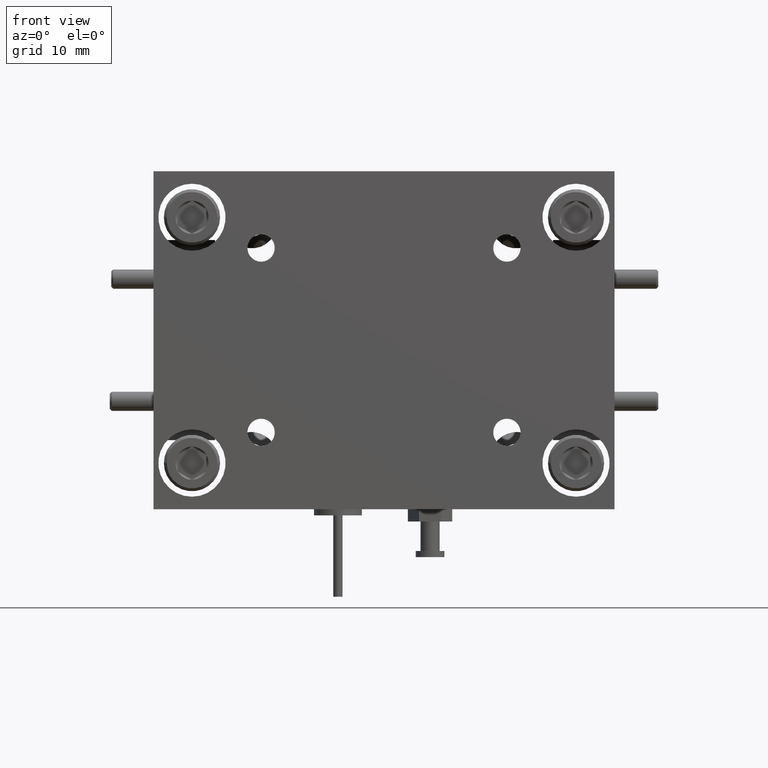
[diagram: clean part render]
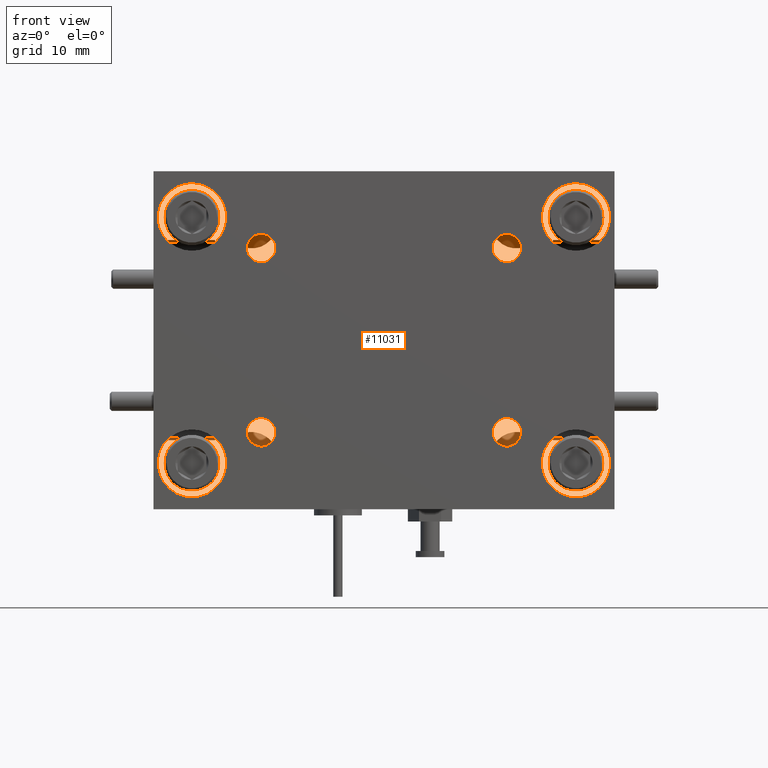
[diagram: same view with one face highlighted and labeled with its STEP entity id]
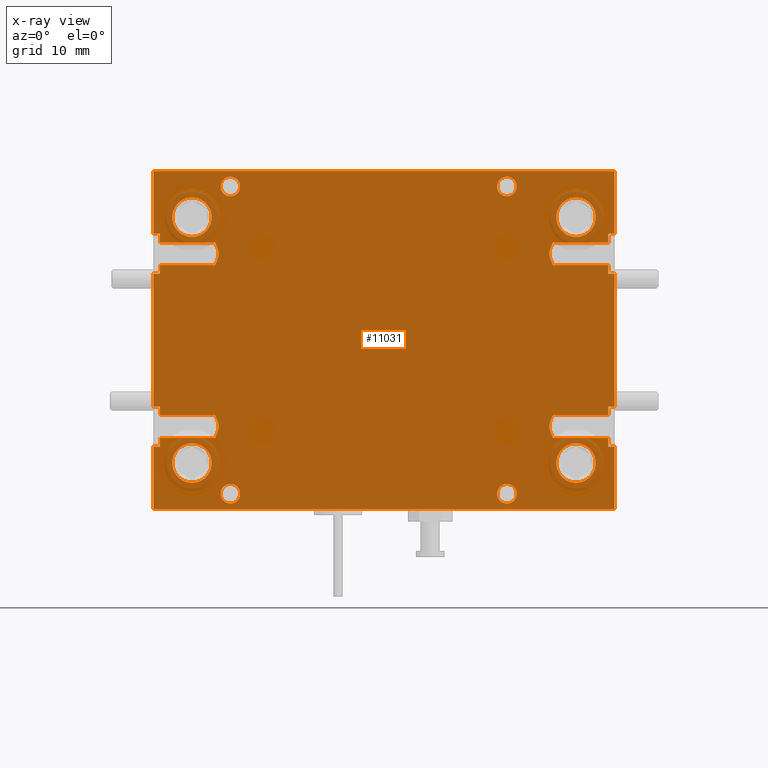
[diagram: x-ray of the same camera — body ghosted, the highlighted face saturated]
A machine part, front view. The second image highlights one B-rep face of the part: STEP entity #11031.
The next image is the same camera in x-ray: the body ghosted, the highlighted face saturated — about 96% of this face is hidden behind the body in this view.
In plain terms, the highlighted planar face has unit normal (0, 1, 0).
Its self-contained STEP definition (entity closure, byte-faithful):
#38 = FACE_BOUND ( 'NONE', #899, .T. ) ;
#44 = ORIENTED_EDGE ( 'NONE', *, *, #6949, .F. ) ;
#52 = CARTESIAN_POINT ( 'NONE',  ( -0.5927859036889990800, 0.3500000000000000300, 0.7685766500883519600 ) ) ;
#120 = CARTESIAN_POINT ( 'NONE',  ( 0.7822140963110010300, 0.3500000000000000300, -0.2456733499116477100 ) ) ;
#163 = DIRECTION ( 'NONE',  ( -0.0000000000000000000, 1.000000000000000000, -0.0000000000000000000 ) ) ;
#172 = VECTOR ( 'NONE', #6573, 39.37007874015748100 ) ;
#182 = B_SPLINE_CURVE_WITH_KNOTS ( 'NONE', 3,
 ( #1904, #8342, #7492, #6505, #8472, #9403, #2940, #2825, #9282, #3821, #3775, #9366 ),
 .UNSPECIFIED., .F., .F.,
 ( 4, 2, 2, 2, 2, 4 ),
 ( 0.001446844853020178900, 0.001939694434171056400, 0.002186119224746495100, 0.002432544015321933900, 0.002925393596472810500, 0.003418243177623687500 ),
 .UNSPECIFIED. ) ;
#192 = CARTESIAN_POINT ( 'NONE',  ( 0.8872140963110005700, 0.3500000000000000300, -0.1280568340647580400 ) ) ;
#212 = DIRECTION ( 'NONE',  ( 0.0000000000000000000, 0.0000000000000000000, -1.000000000000000000 ) ) ;
#215 = LINE ( 'NONE', #7904, #10337 ) ;
#245 = ORIENTED_EDGE ( 'NONE', *, *, #11316, .T. ) ;
#269 = DIRECTION ( 'NONE',  ( 1.000000000000000000, -0.0000000000000000000, -9.106159978880878600E-017 ) ) ;
#310 = ORIENTED_EDGE ( 'NONE', *, *, #2891, .F. ) ;
#316 = CARTESIAN_POINT ( 'NONE',  ( -0.5927859036889988600, 0.3500000000000000300, 0.5366403703567518300 ) ) ;
#338 = VERTEX_POINT ( 'NONE', #9284 ) ;
#380 = DIRECTION ( 'NONE',  ( 0.0000000000000000000, 0.0000000000000000000, 1.000000000000000000 ) ) ;
#404 = CARTESIAN_POINT ( 'NONE',  ( -0.5927859036889990800, 0.3500000000000000300, 0.7685766500883519600 ) ) ;
#426 = CARTESIAN_POINT ( 'NONE',  ( -0.3927859036889987900, 0.3500000000000000300, 0.4630129298199522300 ) ) ;
#428 = VERTEX_POINT ( 'NONE', #192 ) ;
#433 = DIRECTION ( 'NONE',  ( 0.0000000000000000000, 0.0000000000000000000, -1.000000000000000000 ) ) ;
#458 = CARTESIAN_POINT ( 'NONE',  ( 0.5572140963110009400, 0.3500000000000000900, 0.7185766500883518100 ) ) ;
#475 = CIRCLE ( 'NONE', #9201, 0.06424999999999986300 ) ;
#511 = CARTESIAN_POINT ( 'NONE',  ( 0.9072140963110009200, 0.3500000000000000300, 0.7685766500883518500 ) ) ;
#543 = VERTEX_POINT ( 'NONE', #426 ) ;
#544 = DIRECTION ( 'NONE',  ( 1.000000000000000000, -0.0000000000000000000, -0.0000000000000000000 ) ) ;
#575 = VECTOR ( 'NONE', #4503, 39.37007874015748100 ) ;
#609 = LINE ( 'NONE', #511, #5218 ) ;
#642 = CARTESIAN_POINT ( 'NONE',  ( 0.6972730390993814300, 0.3500000000000000300, 0.5126805125114612900 ) ) ;
#646 = CIRCLE ( 'NONE', #1105, 0.06424999999999986300 ) ;
#658 = AXIS2_PLACEMENT_3D ( 'NONE', #4480, #8125, #10969 ) ;
#666 = VERTEX_POINT ( 'NONE', #7103 ) ;
#673 = CARTESIAN_POINT ( 'NONE',  ( -0.3814696699383765500, 0.3500000000000001400, 0.5063457335917643800 ) ) ;
#705 = CIRCLE ( 'NONE', #1293, 0.03174999999999959800 ) ;
#727 = CARTESIAN_POINT ( 'NONE',  ( -0.3427859036889990300, 0.3500000000000000900, 0.7503266500883517500 ) ) ;
#757 = LINE ( 'NONE', #6206, #9718 ) ;
#791 = LINE ( 'NONE', #8459, #9905 ) ;
#808 = AXIS2_PLACEMENT_3D ( 'NONE', #7895, #6869, #433 ) ;
#811 = CIRCLE ( 'NONE', #5607, 0.06424999999999986300 ) ;
#833 = EDGE_CURVE ( 'NONE', #8831, #428, #791, .T. ) ;
#853 = EDGE_CURVE ( 'NONE', #11697, #2583, #646, .T. ) ;
#857 = CARTESIAN_POINT ( 'NONE',  ( -0.5727859036889987300, 0.3500000000000000300, 0.5366403703567518300 ) ) ;
#875 = CARTESIAN_POINT ( 'NONE',  ( -0.5727859036889987300, 0.3500000000000000300, 0.5652101342414621600 ) ) ;
#879 = ORIENTED_EDGE ( 'NONE', *, *, #5553, .F. ) ;
#899 = EDGE_LOOP ( 'NONE', ( #3782, #4801 ) ) ;
#913 = VERTEX_POINT ( 'NONE', #9509 ) ;
#924 = EDGE_LOOP ( 'NONE', ( #6880, #8115 ) ) ;
#940 = DIRECTION ( 'NONE',  ( 0.0000000000000000000, 0.0000000000000000000, -1.000000000000000000 ) ) ;
#946 = LINE ( 'NONE', #9551, #8008 ) ;
#959 = EDGE_LOOP ( 'NONE', ( #6372, #10409, #310, #6968, #44, #6170, #11185, #8275, #2160, #7660, #2060, #1463, #8917, #3861, #4768, #2862, #9651, #6208, #1175, #11073, #6171, #1895, #8822, #1453, #8178, #9950, #3687, #8305, #7993, #6066, #3652, #3378, #1789, #4899, #879, #7962 ) ) ;
#970 = CARTESIAN_POINT ( 'NONE',  ( -0.3871307177725713000, 0.3500000000000000300, 0.4747299638568682200 ) ) ;
#995 = VECTOR ( 'NONE', #5473, 39.37007874015748100 ) ;
#1047 = DIRECTION ( 'NONE',  ( -0.0000000000000000000, -0.0000000000000000000, 1.000000000000000000 ) ) ;
#1059 = VERTEX_POINT ( 'NONE', #6809 ) ;
#1071 = VECTOR ( 'NONE', #1047, 39.37007874015748100 ) ;
#1079 = DIRECTION ( 'NONE',  ( 0.0000000000000000000, 0.0000000000000000000, 1.000000000000000000 ) ) ;
#1105 = AXIS2_PLACEMENT_3D ( 'NONE', #3840, #4764, #5649 ) ;
#1145 = CARTESIAN_POINT ( 'NONE',  ( -0.4677859036889989200, 0.3500000000000000300, -0.1171733499116480300 ) ) ;
#1175 = ORIENTED_EDGE ( 'NONE', *, *, #6785, .F. ) ;
#1282 = VERTEX_POINT ( 'NONE', #857 ) ;
#1293 = AXIS2_PLACEMENT_3D ( 'NONE', #11252, #163, #1079 ) ;
#1297 = DIRECTION ( 'NONE',  ( 0.0000000000000000000, 0.0000000000000000000, -1.000000000000000000 ) ) ;
#1357 = LINE ( 'NONE', #6826, #4798 ) ;
#1413 = CARTESIAN_POINT ( 'NONE',  ( -0.5927859036889988600, 0.3500000000000000300, 0.002710134241462212100 ) ) ;
#1418 = CARTESIAN_POINT ( 'NONE',  ( -0.5927859036889990800, 0.3500000000000000300, -0.3314233499116480100 ) ) ;
#1441 = AXIS2_PLACEMENT_3D ( 'NONE', #458, #3122, #4974 ) ;
#1453 = ORIENTED_EDGE ( 'NONE', *, *, #11609, .T. ) ;
#1463 = ORIENTED_EDGE ( 'NONE', *, *, #5638, .T. ) ;
#1503 = LINE ( 'NONE', #10081, #6964 ) ;
#1538 = EDGE_CURVE ( 'NONE', #2083, #5386, #6380, .T. ) ;
#1582 = CARTESIAN_POINT ( 'NONE',  ( 0.6958978625603784400, 0.3500000000000000900, 0.5063457335917641600 ) ) ;
#1593 = CARTESIAN_POINT ( 'NONE',  ( 0.9072140963110009200, 0.3500000000000000300, 0.7685766500883518500 ) ) ;
#1604 = CARTESIAN_POINT ( 'NONE',  ( -0.5727859036889987300, 0.3500000000000000300, 0.4344431659352419600 ) ) ;
#1618 = CARTESIAN_POINT ( 'NONE',  ( 0.7072140963110006300, 0.3500000000000000300, 0.4630129298199522300 ) ) ;
#1623 = VERTEX_POINT ( 'NONE', #8150 ) ;
#1655 = FACE_BOUND ( 'NONE', #6479, .T. ) ;
#1664 = CARTESIAN_POINT ( 'NONE',  ( 0.7072140963110006300, 0.3500000000000000300, 0.5366403703567520500 ) ) ;
#1686 = VECTOR ( 'NONE', #2461, 39.37007874015748100 ) ;
#1738 = CARTESIAN_POINT ( 'NONE',  ( 0.1572140963110009400, 0.3500000000000000300, 0.2185766500883520600 ) ) ;
#1756 = CARTESIAN_POINT ( 'NONE',  ( 0.7822140963110010300, 0.3500000000000000300, 0.6828266500883520800 ) ) ;
#1789 = ORIENTED_EDGE ( 'NONE', *, *, #7726, .F. ) ;
#1809 = DIRECTION ( 'NONE',  ( 1.000000000000000000, 0.0000000000000000000, 0.0000000000000000000 ) ) ;
#1853 = VERTEX_POINT ( 'NONE', #4235 ) ;
#1854 = CARTESIAN_POINT ( 'NONE',  ( -0.3927859036889987900, 0.3500000000000000300, -0.02585962964324815800 ) ) ;
#1895 = ORIENTED_EDGE ( 'NONE', *, *, #3635, .F. ) ;
#1904 = CARTESIAN_POINT ( 'NONE',  ( -0.3927859036889987900, 0.3500000000000000300, -0.02585962964324815800 ) ) ;
#1940 = LINE ( 'NONE', #52, #1071 ) ;
#2003 = LINE ( 'NONE', #8217, #6429 ) ;
#2059 = CARTESIAN_POINT ( 'NONE',  ( 0.8872140963110005700, 0.3500000000000000300, 0.2185766500883520600 ) ) ;
#2060 = ORIENTED_EDGE ( 'NONE', *, *, #11406, .F. ) ;
#2083 = VERTEX_POINT ( 'NONE', #727 ) ;
#2110 = CARTESIAN_POINT ( 'NONE',  ( 0.9072140963110007000, 0.3500000000000000300, 0.002710134241462109700 ) ) ;
#2160 = ORIENTED_EDGE ( 'NONE', *, *, #11263, .T. ) ;
#2163 = EDGE_CURVE ( 'NONE', #7099, #6370, #9879, .T. ) ;
#2170 = VERTEX_POINT ( 'NONE', #8308 ) ;
#2210 = VECTOR ( 'NONE', #940, 39.37007874015748100 ) ;
#2222 = FACE_BOUND ( 'NONE', #9079, .T. ) ;
#2263 = EDGE_CURVE ( 'NONE', #7959, #7622, #10729, .T. ) ;
#2273 = VECTOR ( 'NONE', #7294, 39.37007874015748100 ) ;
#2344 = DIRECTION ( 'NONE',  ( -0.0000000000000000000, 1.000000000000000000, -0.0000000000000000000 ) ) ;
#2408 = EDGE_CURVE ( 'NONE', #2709, #3125, #11030, .T. ) ;
#2429 = EDGE_CURVE ( 'NONE', #10242, #10837, #609, .T. ) ;
#2461 = DIRECTION ( 'NONE',  ( 0.0000000000000000000, -0.0000000000000000000, 1.000000000000000000 ) ) ;
#2465 = VERTEX_POINT ( 'NONE', #1413 ) ;
#2472 = DIRECTION ( 'NONE',  ( -1.000000000000000000, -0.0000000000000000000, -0.0000000000000000000 ) ) ;
#2478 = CARTESIAN_POINT ( 'NONE',  ( -0.3927859036889987900, 0.3500000000000000300, 0.5366403703567520500 ) ) ;
#2488 = CARTESIAN_POINT ( 'NONE',  ( 0.7015589103945730800, 0.3500000000000000300, 0.4747299638568682200 ) ) ;
#2494 = VECTOR ( 'NONE', #212, 39.37007874015748100 ) ;
#2500 = FACE_BOUND ( 'NONE', #9942, .T. ) ;
#2583 = VERTEX_POINT ( 'NONE', #120 ) ;
#2662 = CARTESIAN_POINT ( 'NONE',  ( 0.8872140963110005700, 0.3500000000000000300, -0.09948707018004769600 ) ) ;
#2667 = CARTESIAN_POINT ( 'NONE',  ( 0.8872140963110005700, 0.3500000000000000300, 0.4344431659352419000 ) ) ;
#2689 = CARTESIAN_POINT ( 'NONE',  ( 0.9072140963110007000, 0.3500000000000000300, -0.1280568340647580400 ) ) ;
#2709 = VERTEX_POINT ( 'NONE', #9501 ) ;
#2748 = VERTEX_POINT ( 'NONE', #3030 ) ;
#2806 = FACE_BOUND ( 'NONE', #5462, .T. ) ;
#2825 = CARTESIAN_POINT ( 'NONE',  ( -0.3810701349866283900, 0.3500000000000000300, -0.06918381239685779400 ) ) ;
#2826 = AXIS2_PLACEMENT_3D ( 'NONE', #4284, #5207, #7053 ) ;
#2834 = DIRECTION ( 'NONE',  ( 1.000000000000000000, -0.0000000000000000000, -0.0000000000000000000 ) ) ;
#2862 = ORIENTED_EDGE ( 'NONE', *, *, #4432, .T. ) ;
#2891 = EDGE_CURVE ( 'NONE', #543, #2748, #9814, .T. ) ;
#2920 = VERTEX_POINT ( 'NONE', #2662 ) ;
#2922 = EDGE_CURVE ( 'NONE', #8831, #9827, #3429, .T. ) ;
#2935 = CARTESIAN_POINT ( 'NONE',  ( 0.5572140963110009400, 0.3500000000000000900, 0.6868266500883522000 ) ) ;
#2940 = CARTESIAN_POINT ( 'NONE',  ( -0.3810686156904092300, 0.3500000000000000900, -0.05942783784264794900 ) ) ;
#3001 = CARTESIAN_POINT ( 'NONE',  ( -0.4677859036889989200, 0.3500000000000000300, 0.6185766500883520500 ) ) ;
#3002 = CARTESIAN_POINT ( 'NONE',  ( 0.7822140963110010300, 0.3500000000000000300, -0.1171733499116479800 ) ) ;
#3006 = CARTESIAN_POINT ( 'NONE',  ( 0.8872140963110005700, 0.3500000000000000900, 0.5366403703567518300 ) ) ;
#3030 = CARTESIAN_POINT ( 'NONE',  ( -0.5727859036889987300, 0.3500000000000000900, 0.4630129298199525100 ) ) ;
#3046 = CARTESIAN_POINT ( 'NONE',  ( 0.7072140963110006300, 0.3500000000000000300, -0.02585962964324815800 ) ) ;
#3120 = CIRCLE ( 'NONE', #1441, 0.03174999999999959800 ) ;
#3122 = DIRECTION ( 'NONE',  ( -0.0000000000000000000, 1.000000000000000000, -0.0000000000000000000 ) ) ;
#3125 = VERTEX_POINT ( 'NONE', #1145 ) ;
#3153 = VERTEX_POINT ( 'NONE', #7664 ) ;
#3185 = VECTOR ( 'NONE', #2834, 39.37007874015748100 ) ;
#3204 = VERTEX_POINT ( 'NONE', #2110 ) ;
#3258 = VERTEX_POINT ( 'NONE', #1418 ) ;
#3262 = DIRECTION ( 'NONE',  ( -1.000000000000000000, 0.0000000000000000000, 0.0000000000000000000 ) ) ;
#3295 = DIRECTION ( 'NONE',  ( 0.0000000000000000000, 0.0000000000000000000, 1.000000000000000000 ) ) ;
#3307 = VECTOR ( 'NONE', #5747, 39.37007874015748100 ) ;
#3365 = CARTESIAN_POINT ( 'NONE',  ( 0.8872140963110005700, 0.3500000000000000300, 0.002710134241462109700 ) ) ;
#3378 = ORIENTED_EDGE ( 'NONE', *, *, #11093, .F. ) ;
#3427 = EDGE_CURVE ( 'NONE', #2465, #7506, #2003, .T. ) ;
#3429 = LINE ( 'NONE', #1593, #995 ) ;
#3478 = LINE ( 'NONE', #875, #11306 ) ;
#3487 = DIRECTION ( 'NONE',  ( 0.0000000000000000000, -0.0000000000000000000, 1.000000000000000000 ) ) ;
#3593 = VERTEX_POINT ( 'NONE', #3847 ) ;
#3605 = VERTEX_POINT ( 'NONE', #3006 ) ;
#3623 = AXIS2_PLACEMENT_3D ( 'NONE', #3977, #10450, #8711 ) ;
#3635 = EDGE_CURVE ( 'NONE', #11529, #8129, #9689, .T. ) ;
#3652 = ORIENTED_EDGE ( 'NONE', *, *, #11401, .F. ) ;
#3687 = ORIENTED_EDGE ( 'NONE', *, *, #10511, .T. ) ;
#3727 = EDGE_CURVE ( 'NONE', #8088, #3593, #3120, .T. ) ;
#3763 = CARTESIAN_POINT ( 'NONE',  ( 0.5572140963110009400, 0.3500000000000000900, -0.2496733499116484700 ) ) ;
#3774 = CARTESIAN_POINT ( 'NONE',  ( 0.9072140963110007000, 0.3500000000000000300, 0.4630129298199525100 ) ) ;
#3775 = CARTESIAN_POINT ( 'NONE',  ( -0.3898894532456844700, 0.3500000000000000300, -0.09366010175864932000 ) ) ;
#3782 = ORIENTED_EDGE ( 'NONE', *, *, #9697, .F. ) ;
#3821 = CARTESIAN_POINT ( 'NONE',  ( -0.3871307177725711300, 0.3500000000000000300, -0.08777003614313191900 ) ) ;
#3840 = CARTESIAN_POINT ( 'NONE',  ( 0.7822140963110010300, 0.3500000000000000300, -0.1814233499116478200 ) ) ;
#3847 = CARTESIAN_POINT ( 'NONE',  ( 0.5572140963110009400, 0.3500000000000000900, 0.7503266500883514200 ) ) ;
#3861 = ORIENTED_EDGE ( 'NONE', *, *, #5782, .F. ) ;
#3916 = DIRECTION ( 'NONE',  ( -0.0000000000000000000, -1.000000000000000000, -0.0000000000000000000 ) ) ;
#3922 = CARTESIAN_POINT ( 'NONE',  ( 0.6954968083124114500, 0.3500000000000000900, -0.05942783784264801100 ) ) ;
#3928 = VECTOR ( 'NONE', #544, 39.37007874015748100 ) ;
#3977 = CARTESIAN_POINT ( 'NONE',  ( -0.3427859036889990300, 0.3500000000000000900, -0.2814233499116479100 ) ) ;
#4074 = EDGE_CURVE ( 'NONE', #3125, #2709, #10637, .T. ) ;
#4087 = FACE_OUTER_BOUND ( 'NONE', #959, .T. ) ;
#4113 = EDGE_CURVE ( 'NONE', #9587, #5588, #8311, .T. ) ;
#4114 = CARTESIAN_POINT ( 'NONE',  ( 0.7822140963110010300, 0.3500000000000000300, 0.6185766500883522800 ) ) ;
#4131 = LINE ( 'NONE', #7254, #2273 ) ;
#4235 = CARTESIAN_POINT ( 'NONE',  ( 0.9072140963110007000, 0.3500000000000000300, 0.4344431659352419000 ) ) ;
#4255 = VECTOR ( 'NONE', #5560, 39.37007874015748100 ) ;
#4284 = CARTESIAN_POINT ( 'NONE',  ( -0.3427859036889990300, 0.3500000000000000900, 0.7185766500883521400 ) ) ;
#4298 = CARTESIAN_POINT ( 'NONE',  ( -0.3838104479673371500, 0.3499999999999998700, 0.5157916129728310500 ) ) ;
#4317 = DIRECTION ( 'NONE',  ( -1.000000000000000000, -0.0000000000000000000, -0.0000000000000000000 ) ) ;
#4319 = LINE ( 'NONE', #3774, #11566 ) ;
#4369 = LINE ( 'NONE', #6063, #3928 ) ;
#4396 = CARTESIAN_POINT ( 'NONE',  ( -0.5927859036889988600, 0.3500000000000000300, 0.4630129298199525100 ) ) ;
#4401 = CARTESIAN_POINT ( 'NONE',  ( -0.3427859036889990300, 0.3500000000000000900, -0.3131733499116475300 ) ) ;
#4429 = DIRECTION ( 'NONE',  ( -1.000000000000000000, 0.0000000000000000000, 0.0000000000000000000 ) ) ;
#4432 = EDGE_CURVE ( 'NONE', #5973, #10745, #4969, .T. ) ;
#4469 = EDGE_LOOP ( 'NONE', ( #5580, #7045 ) ) ;
#4480 = CARTESIAN_POINT ( 'NONE',  ( -0.3427859036889990300, 0.3500000000000000900, -0.2814233499116479100 ) ) ;
#4503 = DIRECTION ( 'NONE',  ( 1.000000000000000000, 0.0000000000000000000, 0.0000000000000000000 ) ) ;
#4601 = EDGE_CURVE ( 'NONE', #1853, #3204, #215, .T. ) ;
#4617 = DIRECTION ( 'NONE',  ( -1.000000000000000000, 0.0000000000000000000, 0.0000000000000000000 ) ) ;
#4662 = EDGE_CURVE ( 'NONE', #666, #6227, #10772, .T. ) ;
#4711 = CARTESIAN_POINT ( 'NONE',  ( 0.8872140963110005700, 0.3500000000000000300, 0.002710134241462109700 ) ) ;
#4758 = EDGE_LOOP ( 'NONE', ( #11809, #245 ) ) ;
#4764 = DIRECTION ( 'NONE',  ( -0.0000000000000000000, -1.000000000000000000, -0.0000000000000000000 ) ) ;
#4768 = ORIENTED_EDGE ( 'NONE', *, *, #8009, .F. ) ;
#4769 = CARTESIAN_POINT ( 'NONE',  ( -0.5727859036889987300, 0.3500000000000000300, -0.1280568340647581000 ) ) ;
#4798 = VECTOR ( 'NONE', #10644, 39.37007874015748100 ) ;
#4801 = ORIENTED_EDGE ( 'NONE', *, *, #3727, .F. ) ;
#4899 = ORIENTED_EDGE ( 'NONE', *, *, #5497, .T. ) ;
#4945 = CARTESIAN_POINT ( 'NONE',  ( -0.4677859036889989200, 0.3500000000000000300, 0.6185766500883520500 ) ) ;
#4946 = LINE ( 'NONE', #7387, #7100 ) ;
#4969 = LINE ( 'NONE', #11088, #4255 ) ;
#4974 = DIRECTION ( 'NONE',  ( 0.0000000000000000000, 0.0000000000000000000, 1.000000000000000000 ) ) ;
#5033 = CARTESIAN_POINT ( 'NONE',  ( 0.5572140963110009400, 0.3500000000000000900, 0.7185766500883518100 ) ) ;
#5066 = AXIS2_PLACEMENT_3D ( 'NONE', #6993, #9219, #11844 ) ;
#5068 = DIRECTION ( 'NONE',  ( 0.0000000000000000000, 0.0000000000000000000, -1.000000000000000000 ) ) ;
#5077 = DIRECTION ( 'NONE',  ( -0.0000000000000000000, -1.000000000000000000, -0.0000000000000000000 ) ) ;
#5167 = DIRECTION ( 'NONE',  ( 0.0000000000000000000, -0.0000000000000000000, 1.000000000000000000 ) ) ;
#5207 = DIRECTION ( 'NONE',  ( -0.0000000000000000000, 1.000000000000000000, -0.0000000000000000000 ) ) ;
#5217 = CARTESIAN_POINT ( 'NONE',  ( -0.3828448464773794300, 0.3500000000000000900, 0.5126805125114614100 ) ) ;
#5218 = VECTOR ( 'NONE', #11621, 39.37007874015748100 ) ;
#5227 = CIRCLE ( 'NONE', #6695, 0.06424999999999986300 ) ;
#5238 = EDGE_CURVE ( 'NONE', #1282, #338, #5820, .T. ) ;
#5307 = DIRECTION ( 'NONE',  ( 0.0000000000000000000, 1.000000000000000000, 0.0000000000000000000 ) ) ;
#5326 = ORIENTED_EDGE ( 'NONE', *, *, #2263, .T. ) ;
#5335 = CARTESIAN_POINT ( 'NONE',  ( 0.7043346397212324500, 0.3500000000000000300, 0.5308475895211588500 ) ) ;
#5336 = LINE ( 'NONE', #316, #5630 ) ;
#5342 = LINE ( 'NONE', #4711, #3185 ) ;
#5371 = LINE ( 'NONE', #9605, #11469 ) ;
#5386 = VERTEX_POINT ( 'NONE', #6152 ) ;
#5462 = EDGE_LOOP ( 'NONE', ( #7834, #7876 ) ) ;
#5464 = VERTEX_POINT ( 'NONE', #1854 ) ;
#5473 = DIRECTION ( 'NONE',  ( 0.0000000000000000000, 0.0000000000000000000, -1.000000000000000000 ) ) ;
#5487 = DIRECTION ( 'NONE',  ( 1.000000000000000000, 0.0000000000000000000, 0.0000000000000000000 ) ) ;
#5491 = CIRCLE ( 'NONE', #3623, 0.03174999999999959800 ) ;
#5497 = EDGE_CURVE ( 'NONE', #2170, #9109, #1503, .T. ) ;
#5553 = EDGE_CURVE ( 'NONE', #2465, #9109, #4946, .T. ) ;
#5560 = DIRECTION ( 'NONE',  ( 0.0000000000000000000, 0.0000000000000000000, -1.000000000000000000 ) ) ;
#5562 = CIRCLE ( 'NONE', #11663, 0.03174999999999959800 ) ;
#5580 = ORIENTED_EDGE ( 'NONE', *, *, #2408, .T. ) ;
#5588 = VERTEX_POINT ( 'NONE', #3763 ) ;
#5607 = AXIS2_PLACEMENT_3D ( 'NONE', #4114, #5077, #11713 ) ;
#5622 = VERTEX_POINT ( 'NONE', #9426 ) ;
#5630 = VECTOR ( 'NONE', #6751, 39.37007874015748100 ) ;
#5638 = EDGE_CURVE ( 'NONE', #913, #3605, #10455, .T. ) ;
#5649 = DIRECTION ( 'NONE',  ( 0.0000000000000000000, 0.0000000000000000000, -1.000000000000000000 ) ) ;
#5700 = CARTESIAN_POINT ( 'NONE',  ( 0.7072140963110006300, 0.3500000000000000300, -0.09948707018004789000 ) ) ;
#5727 = CARTESIAN_POINT ( 'NONE',  ( 0.8872140963110005700, 0.3500000000000000300, 0.2185766500883520600 ) ) ;
#5747 = DIRECTION ( 'NONE',  ( -1.000000000000000000, -0.0000000000000000000, -0.0000000000000000000 ) ) ;
#5770 = CIRCLE ( 'NONE', #2826, 0.03174999999999959800 ) ;
#5778 = CARTESIAN_POINT ( 'NONE',  ( 0.6972730390993813200, 0.3500000000000000300, -0.04981948748853885800 ) ) ;
#5782 = EDGE_CURVE ( 'NONE', #6921, #6709, #10618, .T. ) ;
#5820 = LINE ( 'NONE', #6946, #9897 ) ;
#5882 = CARTESIAN_POINT ( 'NONE',  ( -0.3927859036889987900, 0.3500000000000000300, -0.09948707018004789000 ) ) ;
#5896 = CARTESIAN_POINT ( 'NONE',  ( 0.7822140963110010300, 0.3500000000000000300, 0.6185766500883522800 ) ) ;
#5916 = CARTESIAN_POINT ( 'NONE',  ( -0.3427859036889990300, 0.3500000000000000900, 0.7185766500883521400 ) ) ;
#5973 = VERTEX_POINT ( 'NONE', #10097 ) ;
#6040 = CIRCLE ( 'NONE', #658, 0.03174999999999959800 ) ;
#6063 = CARTESIAN_POINT ( 'NONE',  ( 0.8872140963110005700, 0.3500000000000000300, 0.5652101342414622700 ) ) ;
#6066 = ORIENTED_EDGE ( 'NONE', *, *, #7637, .T. ) ;
#6118 = CARTESIAN_POINT ( 'NONE',  ( 0.9072140963110009200, 0.3500000000000000300, 0.7685766500883518500 ) ) ;
#6124 = CARTESIAN_POINT ( 'NONE',  ( 0.6954983276086304000, 0.3500000000000001400, 0.4933161876031424400 ) ) ;
#6130 = EDGE_CURVE ( 'NONE', #1623, #8648, #5491, .T. ) ;
#6152 = CARTESIAN_POINT ( 'NONE',  ( -0.3427859036889990300, 0.3500000000000000900, 0.6868266500883525300 ) ) ;
#6170 = ORIENTED_EDGE ( 'NONE', *, *, #5238, .T. ) ;
#6171 = ORIENTED_EDGE ( 'NONE', *, *, #9458, .F. ) ;
#6206 = CARTESIAN_POINT ( 'NONE',  ( 0.8872140963110005700, 0.3500000000000000300, 0.4344431659352419000 ) ) ;
#6208 = ORIENTED_EDGE ( 'NONE', *, *, #4601, .T. ) ;
#6227 = VERTEX_POINT ( 'NONE', #7066 ) ;
#6229 = DIRECTION ( 'NONE',  ( 1.000000000000000000, -0.0000000000000000000, -0.0000000000000000000 ) ) ;
#6333 = EDGE_CURVE ( 'NONE', #666, #338, #3478, .T. ) ;
#6370 = VERTEX_POINT ( 'NONE', #10976 ) ;
#6372 = ORIENTED_EDGE ( 'NONE', *, *, #9256, .F. ) ;
#6380 = CIRCLE ( 'NONE', #10388, 0.03174999999999959800 ) ;
#6397 = EDGE_CURVE ( 'NONE', #7622, #7959, #10161, .T. ) ;
#6429 = VECTOR ( 'NONE', #10247, 39.37007874015748100 ) ;
#6436 = LINE ( 'NONE', #1604, #8191 ) ;
#6462 = CARTESIAN_POINT ( 'NONE',  ( -0.3927859036889987900, 0.3500000000000000300, 0.4630129298199522300 ) ) ;
#6479 = EDGE_LOOP ( 'NONE', ( #9765, #5326 ) ) ;
#6505 = CARTESIAN_POINT ( 'NONE',  ( -0.3838104479673371000, 0.3499999999999999800, -0.04670838702716891000 ) ) ;
#6573 = DIRECTION ( 'NONE',  ( 0.0000000000000000000, 0.0000000000000000000, -1.000000000000000000 ) ) ;
#6623 = VERTEX_POINT ( 'NONE', #8889 ) ;
#6632 = LINE ( 'NONE', #9039, #10561 ) ;
#6638 = EDGE_CURVE ( 'NONE', #1853, #10745, #757, .T. ) ;
#6643 = ORIENTED_EDGE ( 'NONE', *, *, #4113, .F. ) ;
#6695 = AXIS2_PLACEMENT_3D ( 'NONE', #9592, #9477, #11378 ) ;
#6697 = CARTESIAN_POINT ( 'NONE',  ( 0.6982386405893390400, 0.3500000000000000300, -0.04670838702716899300 ) ) ;
#6709 = VERTEX_POINT ( 'NONE', #7367 ) ;
#6751 = DIRECTION ( 'NONE',  ( 1.000000000000000000, 0.0000000000000000000, 0.0000000000000000000 ) ) ;
#6770 = AXIS2_PLACEMENT_3D ( 'NONE', #1738, #5307, #3487 ) ;
#6773 = DIRECTION ( 'NONE',  ( -0.0000000000000000000, 1.000000000000000000, -0.0000000000000000000 ) ) ;
#6785 = EDGE_CURVE ( 'NONE', #7099, #3204, #5342, .T. ) ;
#6809 = CARTESIAN_POINT ( 'NONE',  ( -0.5727859036889987300, 0.3500000000000000300, 0.4344431659352419600 ) ) ;
#6817 = CARTESIAN_POINT ( 'NONE',  ( -0.5927859036889988600, 0.3500000000000000300, 0.4344431659352419600 ) ) ;
#6826 = CARTESIAN_POINT ( 'NONE',  ( -0.5927859036889988600, 0.3500000000000000300, -0.09948707018004769600 ) ) ;
#6851 = LINE ( 'NONE', #10748, #6995 ) ;
#6869 = DIRECTION ( 'NONE',  ( -0.0000000000000000000, -1.000000000000000000, -0.0000000000000000000 ) ) ;
#6880 = ORIENTED_EDGE ( 'NONE', *, *, #1538, .F. ) ;
#6921 = VERTEX_POINT ( 'NONE', #8563 ) ;
#6946 = CARTESIAN_POINT ( 'NONE',  ( -0.5727859036889987300, 0.3500000000000000300, 0.2185766500883520600 ) ) ;
#6949 = EDGE_CURVE ( 'NONE', #1282, #5622, #5336, .T. ) ;
#6964 = VECTOR ( 'NONE', #9267, 39.37007874015748100 ) ;
#6968 = ORIENTED_EDGE ( 'NONE', *, *, #7967, .F. ) ;
#6978 = CARTESIAN_POINT ( 'NONE',  ( -0.5727859036889987300, 0.3500000000000000300, 0.002710134241462212100 ) ) ;
#6993 = CARTESIAN_POINT ( 'NONE',  ( -0.4677859036889989200, 0.3500000000000000300, -0.1814233499116479600 ) ) ;
#6995 = VECTOR ( 'NONE', #3262, 39.37007874015748100 ) ;
#7023 = CARTESIAN_POINT ( 'NONE',  ( -0.5927859036889988600, 0.3500000000000000300, -0.1280568340647581000 ) ) ;
#7045 = ORIENTED_EDGE ( 'NONE', *, *, #4074, .T. ) ;
#7053 = DIRECTION ( 'NONE',  ( 0.0000000000000000000, 0.0000000000000000000, 1.000000000000000000 ) ) ;
#7064 = LINE ( 'NONE', #10713, #9690 ) ;
#7066 = CARTESIAN_POINT ( 'NONE',  ( -0.5927859036889990800, 0.3500000000000000300, 0.7685766500883519600 ) ) ;
#7071 = CARTESIAN_POINT ( 'NONE',  ( 0.6954968083124113400, 0.3500000000000000900, 0.5030721621573522900 ) ) ;
#7099 = VERTEX_POINT ( 'NONE', #3365 ) ;
#7100 = VECTOR ( 'NONE', #5487, 39.37007874015748100 ) ;
#7103 = CARTESIAN_POINT ( 'NONE',  ( -0.5927859036889988600, 0.3500000000000000300, 0.5652101342414621600 ) ) ;
#7109 = FACE_BOUND ( 'NONE', #4758, .T. ) ;
#7118 = CARTESIAN_POINT ( 'NONE',  ( 0.7043176458676865300, 0.3500000000000000900, 0.4688398982413508100 ) ) ;
#7124 = EDGE_CURVE ( 'NONE', #6709, #3605, #6632, .T. ) ;
#7191 = PLANE ( 'NONE',  #6770 ) ;
#7254 = CARTESIAN_POINT ( 'NONE',  ( 0.9072140963110007000, 0.3500000000000000300, -0.02585962964324839800 ) ) ;
#7282 = CARTESIAN_POINT ( 'NONE',  ( 0.8872140963110005700, 0.3500000000000000300, 0.2185766500883520600 ) ) ;
#7294 = DIRECTION ( 'NONE',  ( 1.000000000000000000, -0.0000000000000000000, -0.0000000000000000000 ) ) ;
#7307 = CARTESIAN_POINT ( 'NONE',  ( 0.7072140963110006300, 0.3500000000000000300, -0.09948707018004789000 ) ) ;
#7367 = CARTESIAN_POINT ( 'NONE',  ( 0.7072140963110006300, 0.3500000000000000300, 0.5366403703567520500 ) ) ;
#7387 = CARTESIAN_POINT ( 'NONE',  ( -0.5727859036889987300, 0.3500000000000000300, 0.002710134241462212100 ) ) ;
#7401 = CARTESIAN_POINT ( 'NONE',  ( -0.3826907547146888900, 0.3500000000000000900, 0.4869468634376549200 ) ) ;
#7486 = CARTESIAN_POINT ( 'NONE',  ( 0.6954983276086301700, 0.3500000000000000900, -0.06918381239685780800 ) ) ;
#7492 = CARTESIAN_POINT ( 'NONE',  ( -0.3871570212146349700, 0.3500000000000000300, -0.03751288398535412800 ) ) ;
#7506 = VERTEX_POINT ( 'NONE', #6817 ) ;
#7622 = VERTEX_POINT ( 'NONE', #8863 ) ;
#7637 = EDGE_CURVE ( 'NONE', #10505, #6623, #7064, .T. ) ;
#7649 = CARTESIAN_POINT ( 'NONE',  ( 0.7015852138366370800, 0.3500000000000001400, -0.03751288398535423300 ) ) ;
#7658 = EDGE_CURVE ( 'NONE', #5386, #2083, #5770, .T. ) ;
#7660 = ORIENTED_EDGE ( 'NONE', *, *, #2429, .T. ) ;
#7664 = CARTESIAN_POINT ( 'NONE',  ( 0.7822140963110010300, 0.3500000000000000300, 0.5543266500883523600 ) ) ;
#7726 = EDGE_CURVE ( 'NONE', #2170, #5464, #10417, .T. ) ;
#7759 = EDGE_CURVE ( 'NONE', #10505, #11530, #11417, .T. ) ;
#7807 = DIRECTION ( 'NONE',  ( 0.0000000000000000000, 0.0000000000000000000, -1.000000000000000000 ) ) ;
#7834 = ORIENTED_EDGE ( 'NONE', *, *, #11679, .T. ) ;
#7876 = ORIENTED_EDGE ( 'NONE', *, *, #853, .T. ) ;
#7895 = CARTESIAN_POINT ( 'NONE',  ( -0.4677859036889989200, 0.3500000000000000300, -0.1814233499116479600 ) ) ;
#7904 = CARTESIAN_POINT ( 'NONE',  ( 0.9072140963110009200, 0.3500000000000000300, 0.7685766500883518500 ) ) ;
#7948 = CARTESIAN_POINT ( 'NONE',  ( -0.5727859036889987300, 0.3500000000000000300, 0.2185766500883520600 ) ) ;
#7959 = VERTEX_POINT ( 'NONE', #11702 ) ;
#7962 = ORIENTED_EDGE ( 'NONE', *, *, #3427, .T. ) ;
#7967 = EDGE_CURVE ( 'NONE', #5622, #543, #10781, .T. ) ;
#7993 = ORIENTED_EDGE ( 'NONE', *, *, #7759, .F. ) ;
#8008 = VECTOR ( 'NONE', #8585, 39.37007874015748100 ) ;
#8009 = EDGE_CURVE ( 'NONE', #5973, #6921, #4319, .T. ) ;
#8065 = CARTESIAN_POINT ( 'NONE',  ( 0.6971189473366906600, 0.3499999999999999800, 0.4869468634376547500 ) ) ;
#8088 = VERTEX_POINT ( 'NONE', #2935 ) ;
#8115 = ORIENTED_EDGE ( 'NONE', *, *, #7658, .F. ) ;
#8125 = DIRECTION ( 'NONE',  ( -0.0000000000000000000, 1.000000000000000000, -0.0000000000000000000 ) ) ;
#8129 = VERTEX_POINT ( 'NONE', #10443 ) ;
#8150 = CARTESIAN_POINT ( 'NONE',  ( -0.3427859036889990300, 0.3500000000000000900, -0.2496733499116483300 ) ) ;
#8178 = ORIENTED_EDGE ( 'NONE', *, *, #833, .F. ) ;
#8191 = VECTOR ( 'NONE', #2472, 39.37007874015748100 ) ;
#8217 = CARTESIAN_POINT ( 'NONE',  ( -0.5927859036889990800, 0.3500000000000000300, 0.7685766500883519600 ) ) ;
#8257 = CARTESIAN_POINT ( 'NONE',  ( -0.3898894532456845300, 0.3500000000000001400, 0.4688398982413509200 ) ) ;
#8275 = ORIENTED_EDGE ( 'NONE', *, *, #4662, .T. ) ;
#8305 = ORIENTED_EDGE ( 'NONE', *, *, #8891, .T. ) ;
#8308 = CARTESIAN_POINT ( 'NONE',  ( -0.5727859036889987300, 0.3500000000000000300, -0.02585962964324839800 ) ) ;
#8311 = CIRCLE ( 'NONE', #8405, 0.03174999999999959800 ) ;
#8342 = CARTESIAN_POINT ( 'NONE',  ( -0.3899064470992305000, 0.3500000000000000300, -0.03165241047884118800 ) ) ;
#8365 = EDGE_CURVE ( 'NONE', #8648, #1623, #6040, .T. ) ;
#8405 = AXIS2_PLACEMENT_3D ( 'NONE', #11377, #6773, #380 ) ;
#8427 = CARTESIAN_POINT ( 'NONE',  ( 0.6971189473366905500, 0.3499999999999998700, -0.07555313656234531600 ) ) ;
#8459 = CARTESIAN_POINT ( 'NONE',  ( 0.8872140963110005700, 0.3500000000000000300, -0.1280568340647580400 ) ) ;
#8472 = CARTESIAN_POINT ( 'NONE',  ( -0.3828448464773794300, 0.3500000000000001400, -0.04981948748853882300 ) ) ;
#8530 = CARTESIAN_POINT ( 'NONE',  ( 0.9072140963110007000, 0.3500000000000000300, 0.5652101342414622700 ) ) ;
#8533 = EDGE_CURVE ( 'NONE', #5588, #9587, #705, .T. ) ;
#8563 = CARTESIAN_POINT ( 'NONE',  ( 0.7072140963110006300, 0.3500000000000000300, 0.4630129298199522300 ) ) ;
#8585 = DIRECTION ( 'NONE',  ( -1.000000000000000000, 0.0000000000000000000, 1.821231995776175700E-016 ) ) ;
#8590 = CARTESIAN_POINT ( 'NONE',  ( 0.7043346397212325600, 0.3500000000000000900, -0.03165241047884126400 ) ) ;
#8615 = CARTESIAN_POINT ( 'NONE',  ( 0.5572140963110009400, 0.3500000000000000900, -0.3131733499116476900 ) ) ;
#8648 = VERTEX_POINT ( 'NONE', #4401 ) ;
#8711 = DIRECTION ( 'NONE',  ( 0.0000000000000000000, 0.0000000000000000000, 1.000000000000000000 ) ) ;
#8755 = VERTEX_POINT ( 'NONE', #1756 ) ;
#8791 = DIRECTION ( 'NONE',  ( 0.0000000000000000000, -0.0000000000000000000, 1.000000000000000000 ) ) ;
#8806 = DIRECTION ( 'NONE',  ( 0.0000000000000000000, 0.0000000000000000000, 1.000000000000000000 ) ) ;
#8822 = ORIENTED_EDGE ( 'NONE', *, *, #9739, .F. ) ;
#8831 = VERTEX_POINT ( 'NONE', #2689 ) ;
#8846 = DIRECTION ( 'NONE',  ( -0.0000000000000000000, 1.000000000000000000, -0.0000000000000000000 ) ) ;
#8863 = CARTESIAN_POINT ( 'NONE',  ( -0.4677859036889989200, 0.3500000000000000300, 0.5543266500883521400 ) ) ;
#8889 = CARTESIAN_POINT ( 'NONE',  ( -0.5727859036889987300, 0.3500000000000000900, -0.09948707018004769600 ) ) ;
#8891 = EDGE_CURVE ( 'NONE', #3258, #11530, #1940, .T. ) ;
#8917 = ORIENTED_EDGE ( 'NONE', *, *, #7124, .F. ) ;
#9039 = CARTESIAN_POINT ( 'NONE',  ( 0.9072140963110007000, 0.3500000000000000300, 0.5366403703567518300 ) ) ;
#9079 = EDGE_LOOP ( 'NONE', ( #9499, #11323 ) ) ;
#9080 = CARTESIAN_POINT ( 'NONE',  ( 0.7015852138366369700, 0.3500000000000000300, 0.5249871160146458700 ) ) ;
#9109 = VERTEX_POINT ( 'NONE', #6978 ) ;
#9142 = ORIENTED_EDGE ( 'NONE', *, *, #8533, .F. ) ;
#9201 = AXIS2_PLACEMENT_3D ( 'NONE', #5896, #11457, #7807 ) ;
#9219 = DIRECTION ( 'NONE',  ( -0.0000000000000000000, -1.000000000000000000, -0.0000000000000000000 ) ) ;
#9236 = CARTESIAN_POINT ( 'NONE',  ( -0.3810686156904092300, 0.3500000000000000900, 0.5030721621573520700 ) ) ;
#9256 = EDGE_CURVE ( 'NONE', #1059, #7506, #6436, .T. ) ;
#9267 = DIRECTION ( 'NONE',  ( 0.0000000000000000000, -0.0000000000000000000, 1.000000000000000000 ) ) ;
#9282 = CARTESIAN_POINT ( 'NONE',  ( -0.3826907547146887700, 0.3500000000000000900, -0.07555313656234527400 ) ) ;
#9284 = CARTESIAN_POINT ( 'NONE',  ( -0.5727859036889987300, 0.3500000000000000300, 0.5652101342414621600 ) ) ;
#9361 = CARTESIAN_POINT ( 'NONE',  ( 0.7043176458676861900, 0.3500000000000001400, -0.09366010175864934700 ) ) ;
#9366 = CARTESIAN_POINT ( 'NONE',  ( -0.3927859036889987900, 0.3500000000000000300, -0.09948707018004789000 ) ) ;
#9403 = CARTESIAN_POINT ( 'NONE',  ( -0.3814696699383765500, 0.3500000000000000300, -0.05615426640823596700 ) ) ;
#9426 = CARTESIAN_POINT ( 'NONE',  ( -0.3927859036889987900, 0.3500000000000000300, 0.5366403703567520500 ) ) ;
#9458 = EDGE_CURVE ( 'NONE', #8129, #6370, #4131, .T. ) ;
#9477 = DIRECTION ( 'NONE',  ( -0.0000000000000000000, -1.000000000000000000, -0.0000000000000000000 ) ) ;
#9499 = ORIENTED_EDGE ( 'NONE', *, *, #6130, .F. ) ;
#9501 = CARTESIAN_POINT ( 'NONE',  ( -0.4677859036889989200, 0.3500000000000000300, -0.2456733499116479100 ) ) ;
#9509 = CARTESIAN_POINT ( 'NONE',  ( 0.8872140963110005700, 0.3500000000000000300, 0.5652101342414622700 ) ) ;
#9551 = CARTESIAN_POINT ( 'NONE',  ( 0.9072140963110009200, 0.3500000000000000300, -0.3314233499116482900 ) ) ;
#9587 = VERTEX_POINT ( 'NONE', #8615 ) ;
#9592 = CARTESIAN_POINT ( 'NONE',  ( 0.7822140963110010300, 0.3500000000000000300, -0.1814233499116478200 ) ) ;
#9605 = CARTESIAN_POINT ( 'NONE',  ( 0.9072140963110009200, 0.3500000000000000300, 0.7685766500883518500 ) ) ;
#9651 = ORIENTED_EDGE ( 'NONE', *, *, #6638, .F. ) ;
#9659 = VERTEX_POINT ( 'NONE', #5882 ) ;
#9689 = B_SPLINE_CURVE_WITH_KNOTS ( 'NONE', 3,
 ( #5700, #9361, #11301, #8427, #7486, #3922, #10399, #5778, #6697, #7649, #8590, #3046 ),
 .UNSPECIFIED., .F., .F.,
 ( 4, 2, 2, 2, 2, 4 ),
 ( 0.005717696483567574400, 0.006212497088564192400, 0.006707297693560810400, 0.006954697996059119900, 0.007202098298557429300, 0.007696898903554047300 ),
 .UNSPECIFIED. ) ;
#9690 = VECTOR ( 'NONE', #5167, 39.37007874015748100 ) ;
#9694 = DIRECTION ( 'NONE',  ( -0.0000000000000000000, -0.0000000000000000000, 1.000000000000000000 ) ) ;
#9697 = EDGE_CURVE ( 'NONE', #3593, #8088, #5562, .T. ) ;
#9718 = VECTOR ( 'NONE', #4429, 39.37007874015748100 ) ;
#9739 = EDGE_CURVE ( 'NONE', #2920, #11529, #6851, .T. ) ;
#9765 = ORIENTED_EDGE ( 'NONE', *, *, #6397, .T. ) ;
#9778 = EDGE_CURVE ( 'NONE', #3153, #8755, #811, .T. ) ;
#9790 = EDGE_CURVE ( 'NONE', #1059, #2748, #10061, .T. ) ;
#9814 = LINE ( 'NONE', #4396, #10100 ) ;
#9827 = VERTEX_POINT ( 'NONE', #9861 ) ;
#9834 = AXIS2_PLACEMENT_3D ( 'NONE', #3001, #3916, #10393 ) ;
#9847 = CARTESIAN_POINT ( 'NONE',  ( -0.3871570212146350800, 0.3500000000000000900, 0.5249871160146459800 ) ) ;
#9861 = CARTESIAN_POINT ( 'NONE',  ( 0.9072140963110009200, 0.3500000000000000300, -0.3314233499116482900 ) ) ;
#9879 = LINE ( 'NONE', #7282, #2210 ) ;
#9897 = VECTOR ( 'NONE', #8791, 39.37007874015748100 ) ;
#9898 = CARTESIAN_POINT ( 'NONE',  ( 0.6982386405893393800, 0.3500000000000002600, 0.5157916129728312700 ) ) ;
#9905 = VECTOR ( 'NONE', #11175, 39.37007874015748100 ) ;
#9942 = EDGE_LOOP ( 'NONE', ( #9142, #6643 ) ) ;
#9950 = ORIENTED_EDGE ( 'NONE', *, *, #2922, .T. ) ;
#10061 = LINE ( 'NONE', #7948, #1686 ) ;
#10081 = CARTESIAN_POINT ( 'NONE',  ( -0.5727859036889987300, 0.3500000000000000300, 0.2185766500883520600 ) ) ;
#10097 = CARTESIAN_POINT ( 'NONE',  ( 0.8872140963110005700, 0.3500000000000000300, 0.4630129298199525100 ) ) ;
#10100 = VECTOR ( 'NONE', #4317, 39.37007874015748100 ) ;
#10161 = CIRCLE ( 'NONE', #9834, 0.06424999999999993200 ) ;
#10242 = VERTEX_POINT ( 'NONE', #6118 ) ;
#10247 = DIRECTION ( 'NONE',  ( -0.0000000000000000000, -0.0000000000000000000, 1.000000000000000000 ) ) ;
#10315 = FACE_BOUND ( 'NONE', #924, .T. ) ;
#10337 = VECTOR ( 'NONE', #5068, 39.37007874015748100 ) ;
#10388 = AXIS2_PLACEMENT_3D ( 'NONE', #5916, #8846, #3295 ) ;
#10393 = DIRECTION ( 'NONE',  ( 0.0000000000000000000, 0.0000000000000000000, -1.000000000000000000 ) ) ;
#10399 = CARTESIAN_POINT ( 'NONE',  ( 0.6958978625603783300, 0.3500000000000000300, -0.05615426640823600200 ) ) ;
#10409 = ORIENTED_EDGE ( 'NONE', *, *, #9790, .T. ) ;
#10417 = LINE ( 'NONE', #11992, #575 ) ;
#10443 = CARTESIAN_POINT ( 'NONE',  ( 0.7072140963110006300, 0.3500000000000000300, -0.02585962964324815800 ) ) ;
#10450 = DIRECTION ( 'NONE',  ( -0.0000000000000000000, 1.000000000000000000, -0.0000000000000000000 ) ) ;
#10454 = DIRECTION ( 'NONE',  ( -0.0000000000000000000, -1.000000000000000000, -0.0000000000000000000 ) ) ;
#10455 = LINE ( 'NONE', #5727, #2494 ) ;
#10505 = VERTEX_POINT ( 'NONE', #4769 ) ;
#10511 = EDGE_CURVE ( 'NONE', #9827, #3258, #946, .T. ) ;
#10561 = VECTOR ( 'NONE', #6229, 39.37007874015748100 ) ;
#10618 = B_SPLINE_CURVE_WITH_KNOTS ( 'NONE', 3,
 ( #1618, #7118, #2488, #8065, #6124, #7071, #1582, #642, #9898, #9080, #5335, #1664 ),
 .UNSPECIFIED., .F., .F.,
 ( 4, 2, 2, 2, 2, 4 ),
 ( 0.005717696483567570900, 0.006212497088564190700, 0.006707297693560811300, 0.006954697996059121600, 0.007202098298557431000, 0.007696898903554046400 ),
 .UNSPECIFIED. ) ;
#10637 = CIRCLE ( 'NONE', #5066, 0.06424999999999993200 ) ;
#10644 = DIRECTION ( 'NONE',  ( -1.000000000000000000, -0.0000000000000000000, -0.0000000000000000000 ) ) ;
#10708 = AXIS2_PLACEMENT_3D ( 'NONE', #4945, #10454, #1297 ) ;
#10713 = CARTESIAN_POINT ( 'NONE',  ( -0.5727859036889987300, 0.3500000000000000300, 0.2185766500883520600 ) ) ;
#10728 = CARTESIAN_POINT ( 'NONE',  ( -0.3899064470992304500, 0.3500000000000000300, 0.5308475895211589600 ) ) ;
#10729 = CIRCLE ( 'NONE', #10708, 0.06424999999999993200 ) ;
#10745 = VERTEX_POINT ( 'NONE', #2667 ) ;
#10748 = CARTESIAN_POINT ( 'NONE',  ( 0.9072140963110007000, 0.3500000000000000300, -0.09948707018004769600 ) ) ;
#10772 = LINE ( 'NONE', #404, #11358 ) ;
#10781 = B_SPLINE_CURVE_WITH_KNOTS ( 'NONE', 3,
 ( #2478, #10728, #9847, #4298, #5217, #673, #9236, #11065, #7401, #970, #8257, #6462 ),
 .UNSPECIFIED., .F., .F.,
 ( 4, 2, 2, 2, 2, 4 ),
 ( 0.001446844853020183900, 0.001939694434171056800, 0.002186119224746496000, 0.002432544015321934700, 0.002925393596472812200, 0.003418243177623690600 ),
 .UNSPECIFIED. ) ;
#10837 = VERTEX_POINT ( 'NONE', #8530 ) ;
#10879 = LINE ( 'NONE', #2059, #172 ) ;
#10969 = DIRECTION ( 'NONE',  ( 0.0000000000000000000, 0.0000000000000000000, 1.000000000000000000 ) ) ;
#10976 = CARTESIAN_POINT ( 'NONE',  ( 0.8872140963110005700, 0.3500000000000000300, -0.02585962964324839800 ) ) ;
#11030 = CIRCLE ( 'NONE', #808, 0.06424999999999993200 ) ;
#11031 = ADVANCED_FACE ( 'NONE', ( #4087, #2222, #10315, #2500, #38, #2806, #1655, #11761, #7109 ), #7191, .T. ) ;
#11065 = CARTESIAN_POINT ( 'NONE',  ( -0.3810701349866283900, 0.3500000000000000300, 0.4933161876031423900 ) ) ;
#11073 = ORIENTED_EDGE ( 'NONE', *, *, #2163, .T. ) ;
#11088 = CARTESIAN_POINT ( 'NONE',  ( 0.8872140963110005700, 0.3500000000000000300, 0.2185766500883520600 ) ) ;
#11093 = EDGE_CURVE ( 'NONE', #5464, #9659, #182, .T. ) ;
#11175 = DIRECTION ( 'NONE',  ( -1.000000000000000000, 0.0000000000000000000, 0.0000000000000000000 ) ) ;
#11185 = ORIENTED_EDGE ( 'NONE', *, *, #6333, .F. ) ;
#11252 = CARTESIAN_POINT ( 'NONE',  ( 0.5572140963110009400, 0.3500000000000000900, -0.2814233499116480800 ) ) ;
#11263 = EDGE_CURVE ( 'NONE', #6227, #10242, #5371, .T. ) ;
#11301 = CARTESIAN_POINT ( 'NONE',  ( 0.7015589103945730800, 0.3500000000000000300, -0.08777003614313194600 ) ) ;
#11306 = VECTOR ( 'NONE', #1809, 39.37007874015748100 ) ;
#11308 = CARTESIAN_POINT ( 'NONE',  ( -0.5727859036889987300, 0.3500000000000000300, -0.1280568340647581000 ) ) ;
#11316 = EDGE_CURVE ( 'NONE', #8755, #3153, #475, .T. ) ;
#11323 = ORIENTED_EDGE ( 'NONE', *, *, #8365, .F. ) ;
#11358 = VECTOR ( 'NONE', #9694, 39.37007874015748100 ) ;
#11377 = CARTESIAN_POINT ( 'NONE',  ( 0.5572140963110009400, 0.3500000000000000900, -0.2814233499116480800 ) ) ;
#11378 = DIRECTION ( 'NONE',  ( 0.0000000000000000000, 0.0000000000000000000, -1.000000000000000000 ) ) ;
#11401 = EDGE_CURVE ( 'NONE', #9659, #6623, #1357, .T. ) ;
#11406 = EDGE_CURVE ( 'NONE', #913, #10837, #4369, .T. ) ;
#11417 = LINE ( 'NONE', #11308, #3307 ) ;
#11457 = DIRECTION ( 'NONE',  ( -0.0000000000000000000, -1.000000000000000000, -0.0000000000000000000 ) ) ;
#11469 = VECTOR ( 'NONE', #269, 39.37007874015748100 ) ;
#11529 = VERTEX_POINT ( 'NONE', #7307 ) ;
#11530 = VERTEX_POINT ( 'NONE', #7023 ) ;
#11566 = VECTOR ( 'NONE', #4617, 39.37007874015748100 ) ;
#11609 = EDGE_CURVE ( 'NONE', #2920, #428, #10879, .T. ) ;
#11621 = DIRECTION ( 'NONE',  ( 0.0000000000000000000, 0.0000000000000000000, -1.000000000000000000 ) ) ;
#11663 = AXIS2_PLACEMENT_3D ( 'NONE', #5033, #2344, #8806 ) ;
#11679 = EDGE_CURVE ( 'NONE', #2583, #11697, #5227, .T. ) ;
#11697 = VERTEX_POINT ( 'NONE', #3002 ) ;
#11702 = CARTESIAN_POINT ( 'NONE',  ( -0.4677859036889989200, 0.3500000000000000300, 0.6828266500883520800 ) ) ;
#11713 = DIRECTION ( 'NONE',  ( 0.0000000000000000000, 0.0000000000000000000, -1.000000000000000000 ) ) ;
#11761 = FACE_BOUND ( 'NONE', #4469, .T. ) ;
#11809 = ORIENTED_EDGE ( 'NONE', *, *, #9778, .T. ) ;
#11844 = DIRECTION ( 'NONE',  ( 0.0000000000000000000, 0.0000000000000000000, -1.000000000000000000 ) ) ;
#11992 = CARTESIAN_POINT ( 'NONE',  ( -0.5927859036889988600, 0.3500000000000000300, -0.02585962964324839800 ) ) ;